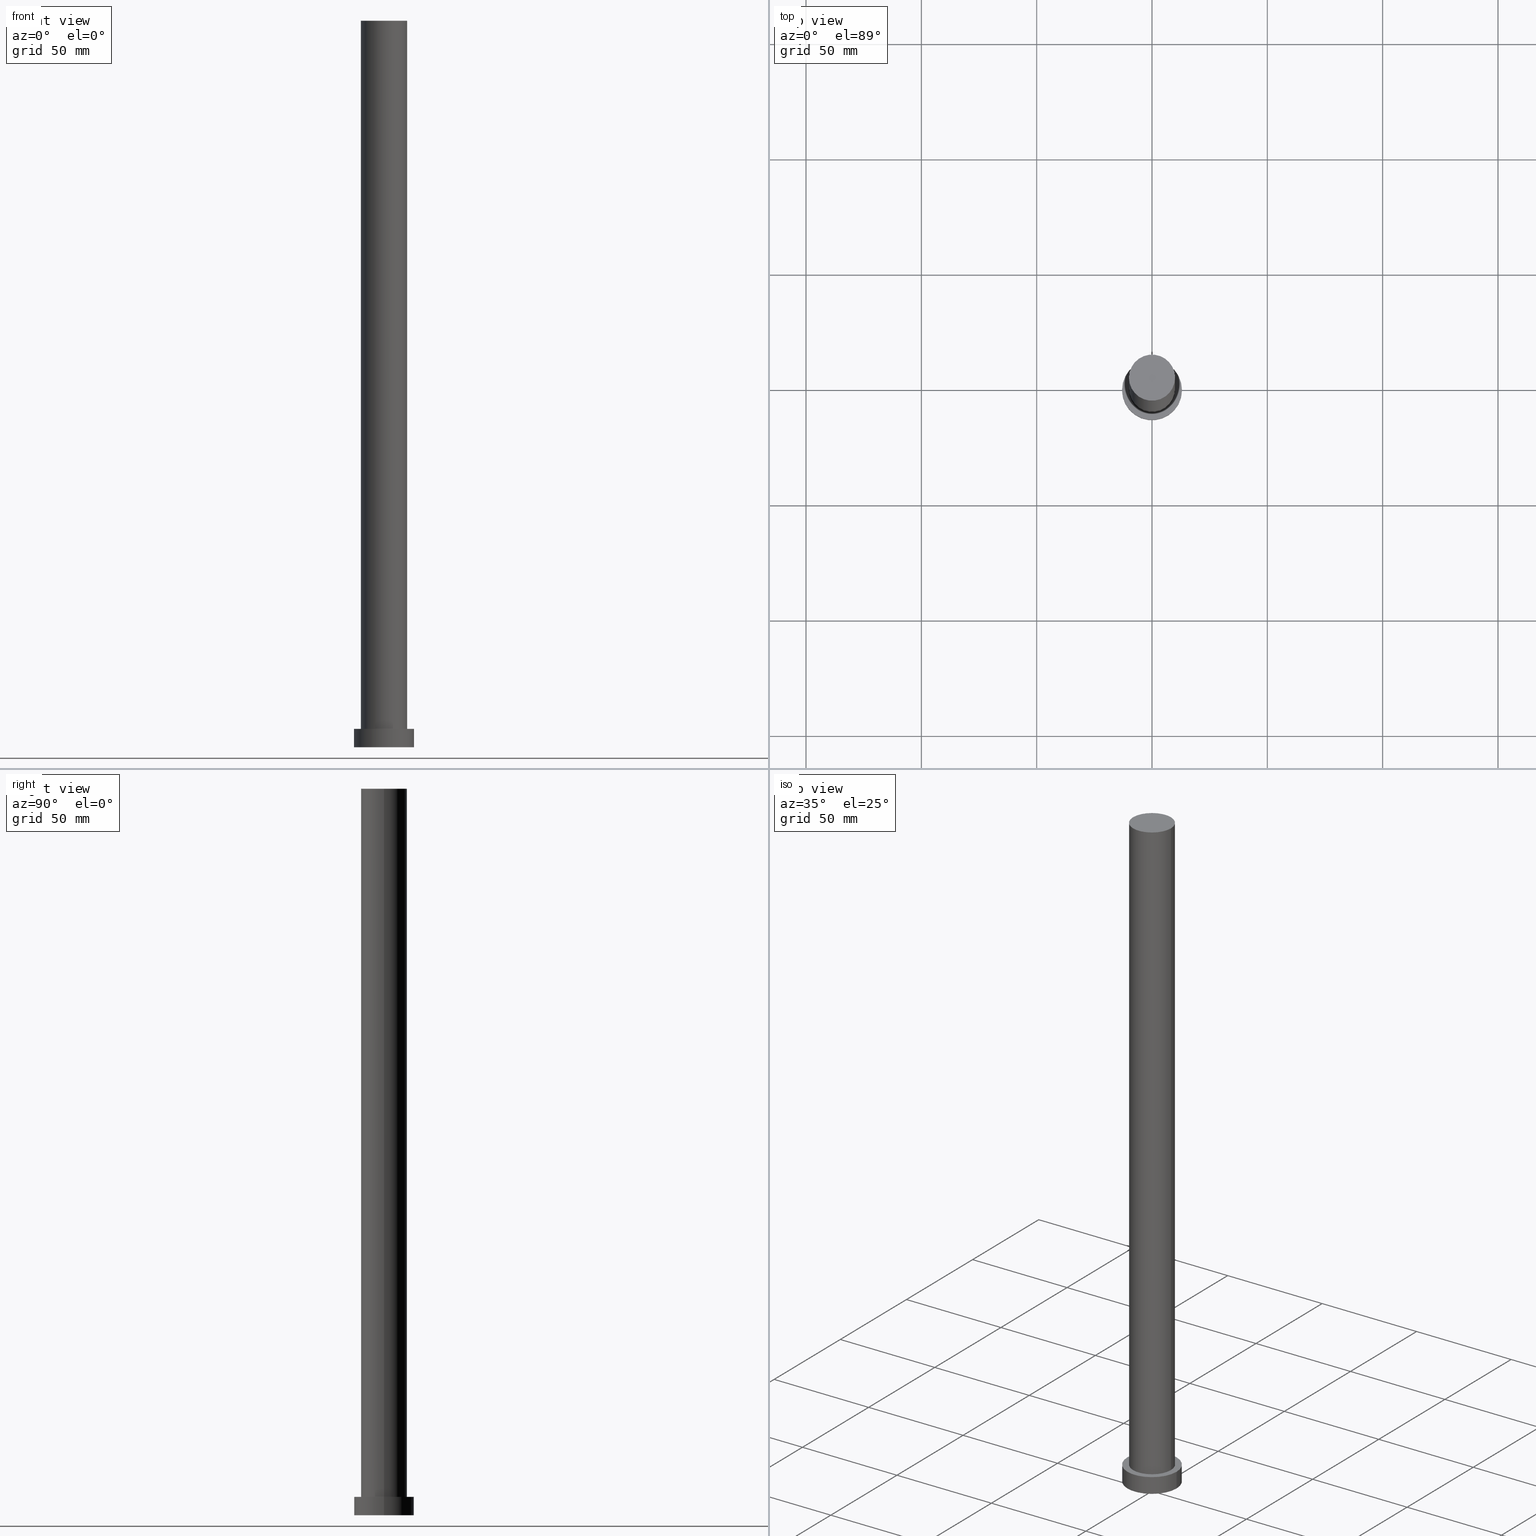
[diagram: canonical four-view strip — front | top / right | iso, engineering-drawing reading convention]
A machine part, canonical four-view strip (front | top / right | iso — engineering-drawing reading convention). The complete STEP part file that produces these views, byte-faithful:
ISO-10303-21;
HEADER;
FILE_DESCRIPTION (( 'STEP AP203' ),
    '1' );
FILE_NAME ('c6f5.STEP',
    '2023-02-13T07:53:54',
    ( '' ),
    ( '' ),
    'SwSTEP 2.0',
    'SolidWorks 2019',
    '' );
FILE_SCHEMA (( 'CONFIG_CONTROL_DESIGN' ));
ENDSEC;

DATA;
#1 = CARTESIAN_POINT ( 'NONE',  ( -10.00000000000000000, 0.000000000000000000, 315.0000000000000000 ) ) ;
#2 = DIRECTION ( 'NONE',  ( -0.000000000000000000, -0.000000000000000000, -1.000000000000000000 ) ) ;
#3 = PRODUCT_DEFINITION ( 'NEZN�M�', '', #159, #122 ) ;
#4 = ORIENTED_EDGE ( 'NONE', *, *, #205, .F. ) ;
#5 = CYLINDRICAL_SURFACE ( 'NONE', #192, 10.00000000000000000 ) ;
#6 = DIRECTION ( 'NONE',  ( 0.000000000000000000, 0.000000000000000000, 1.000000000000000000 ) ) ;
#7 = LOCAL_TIME ( 8, 53, 54.00000000000000000, #135 ) ;
#8 = DIRECTION ( 'NONE',  ( 1.000000000000000000, 0.000000000000000000, 0.000000000000000000 ) ) ;
#9 = DIRECTION ( 'NONE',  ( 1.000000000000000000, 0.000000000000000000, 0.000000000000000000 ) ) ;
#10 = ORIENTED_EDGE ( 'NONE', *, *, #245, .T. ) ;
#11 = CC_DESIGN_DATE_AND_TIME_ASSIGNMENT ( #231, #90, ( #3 ) ) ;
#12 = VERTEX_POINT ( 'NONE', #77 ) ;
#13 = AXIS2_PLACEMENT_3D ( 'NONE', #89, #98, #154 ) ;
#14 = EDGE_LOOP ( 'NONE', ( #149, #117 ) ) ;
#15 = APPROVAL ( #233, 'NEUR�EN�' ) ;
#16 = CARTESIAN_POINT ( 'NONE',  ( 10.00000000000000000, 1.224646799147353256E-15, 8.000000000000000000 ) ) ;
#17 = ORIENTED_EDGE ( 'NONE', *, *, #146, .F. ) ;
#18 = APPROVAL_ROLE ( '' ) ;
#19 = DIRECTION ( 'NONE',  ( -1.000000000000000000, 0.000000000000000000, 0.000000000000000000 ) ) ;
#20 = CARTESIAN_POINT ( 'NONE',  ( 0.000000000000000000, 0.000000000000000000, 8.000000000000000000 ) ) ;
#21 = DIRECTION ( 'NONE',  ( -1.000000000000000000, 0.000000000000000000, 0.000000000000000000 ) ) ;
#22 = FACE_OUTER_BOUND ( 'NONE', #227, .T. ) ;
#23 = APPROVAL_PERSON_ORGANIZATION ( #71, #15, #18 ) ;
#24 = CARTESIAN_POINT ( 'NONE',  ( -13.00000000000000178, 0.000000000000000000, 8.000000000000000000 ) ) ;
#25 = APPROVAL_ROLE ( '' ) ;
#26 =( LENGTH_UNIT ( ) NAMED_UNIT ( * ) SI_UNIT ( .MILLI., .METRE. ) );
#27 = PERSON_AND_ORGANIZATION ( #138, #79 ) ;
#28 = ORIENTED_EDGE ( 'NONE', *, *, #107, .F. ) ;
#29 =( NAMED_UNIT ( * ) SI_UNIT ( $, .STERADIAN. ) SOLID_ANGLE_UNIT ( ) );
#30 = CC_DESIGN_APPROVAL ( #124, ( #159 ) ) ;
#31 = PERSON_AND_ORGANIZATION_ROLE ( 'design_supplier' ) ;
#32 = EDGE_CURVE ( 'NONE', #189, #156, #184, .T. ) ;
#33 = VERTEX_POINT ( 'NONE', #48 ) ;
#34 = CC_DESIGN_PERSON_AND_ORGANIZATION_ASSIGNMENT ( #207, #190, ( #136 ) ) ;
#35 = EDGE_LOOP ( 'NONE', ( #206, #46, #247, #17 ) ) ;
#36 = PLANE ( 'NONE',  #193 ) ;
#37 = DIRECTION ( 'NONE',  ( -0.000000000000000000, -0.000000000000000000, -1.000000000000000000 ) ) ;
#38 = CC_DESIGN_PERSON_AND_ORGANIZATION_ASSIGNMENT ( #108, #248, ( #186 ) ) ;
#39 = CYLINDRICAL_SURFACE ( 'NONE', #166, 10.00000000000000000 ) ;
#40 = CARTESIAN_POINT ( 'NONE',  ( 0.000000000000000000, 0.000000000000000000, 315.0000000000000000 ) ) ;
#41 = DIRECTION ( 'NONE',  ( -0.000000000000000000, -0.000000000000000000, -1.000000000000000000 ) ) ;
#42 = CARTESIAN_POINT ( 'NONE',  ( -10.00000000000000000, 0.000000000000000000, 315.0000000000000000 ) ) ;
#43 = ADVANCED_FACE ( 'NONE', ( #131 ), #202, .T. ) ;
#44 = EDGE_LOOP ( 'NONE', ( #4, #200, #178, #252 ) ) ;
#45 = ADVANCED_FACE ( 'NONE', ( #214 ), #39, .T. ) ;
#46 = ORIENTED_EDGE ( 'NONE', *, *, #205, .T. ) ;
#47 = ORIENTED_EDGE ( 'NONE', *, *, #168, .T. ) ;
#48 = CARTESIAN_POINT ( 'NONE',  ( -13.00000000000000178, 0.000000000000000000, 0.000000000000000000 ) ) ;
#49 = CARTESIAN_POINT ( 'NONE',  ( 0.000000000000000000, 0.000000000000000000, 0.000000000000000000 ) ) ;
#50 = APPROVAL_DATE_TIME ( #203, #172 ) ;
#51 = VECTOR ( 'NONE', #37, 1000.000000000000000 ) ;
#52 = VECTOR ( 'NONE', #2, 1000.000000000000000 ) ;
#53 = APPLICATION_PROTOCOL_DEFINITION ( 'international standard', 'config_control_design', 1994, #67 ) ;
#54 = PRODUCT_DEFINITION_SHAPE ( 'NONE', 'NONE',  #3 ) ;
#55 = SECURITY_CLASSIFICATION_LEVEL ( 'unclassified' ) ;
#56 = CARTESIAN_POINT ( 'NONE',  ( 13.00000000000000178, 1.592040838891559293E-15, 8.000000000000000000 ) ) ;
#57 = CARTESIAN_POINT ( 'NONE',  ( 0.000000000000000000, 0.000000000000000000, 8.000000000000000000 ) ) ;
#58 = DIRECTION ( 'NONE',  ( 1.000000000000000000, 0.000000000000000000, -0.000000000000000000 ) ) ;
#59 = CARTESIAN_POINT ( 'NONE',  ( 0.000000000000000000, 0.000000000000000000, 8.000000000000000000 ) ) ;
#60 = ADVANCED_FACE ( 'NONE', ( #123 ), #5, .T. ) ;
#61 = DIRECTION ( 'NONE',  ( 0.000000000000000000, 0.000000000000000000, 1.000000000000000000 ) ) ;
#62 = EDGE_CURVE ( 'NONE', #216, #241, #208, .T. ) ;
#63 = ORIENTED_EDGE ( 'NONE', *, *, #99, .T. ) ;
#64 = APPLICATION_PROTOCOL_DEFINITION ( 'international standard', 'config_control_design', 1994, #187 ) ;
#65 = FACE_OUTER_BOUND ( 'NONE', #164, .T. ) ;
#66 = CALENDAR_DATE ( 2023, 13, 2 ) ;
#67 = APPLICATION_CONTEXT ( 'configuration controlled 3d designs of mechanical parts and assemblies' ) ;
#68 = CALENDAR_DATE ( 2023, 13, 2 ) ;
#69 = DIRECTION ( 'NONE',  ( 0.000000000000000000, 0.000000000000000000, 1.000000000000000000 ) ) ;
#70 = ORIENTED_EDGE ( 'NONE', *, *, #182, .F. ) ;
#71 = PERSON_AND_ORGANIZATION ( #138, #79 ) ;
#72 = CARTESIAN_POINT ( 'NONE',  ( -13.00000000000000178, 0.000000000000000000, 8.000000000000000000 ) ) ;
#73 = LOCAL_TIME ( 8, 53, 54.00000000000000000, #133 ) ;
#74 = DATE_AND_TIME ( #255, #115 ) ;
#75 = FACE_BOUND ( 'NONE', #97, .T. ) ;
#76 = CARTESIAN_POINT ( 'NONE',  ( -10.00000000000000000, 0.000000000000000000, 8.000000000000000000 ) ) ;
#77 = CARTESIAN_POINT ( 'NONE',  ( 13.00000000000000178, 1.592040838891559293E-15, 0.000000000000000000 ) ) ;
#78 = CARTESIAN_POINT ( 'NONE',  ( 0.000000000000000000, 0.000000000000000000, 315.0000000000000000 ) ) ;
#79 = ORGANIZATION ( 'NEUR�EN�', 'NEUR�EN�', '' ) ;
#80 = APPROVAL_PERSON_ORGANIZATION ( #251, #124, #25 ) ;
#81 = CC_DESIGN_PERSON_AND_ORGANIZATION_ASSIGNMENT ( #157, #31, ( #159 ) ) ;
#82 = DIRECTION ( 'NONE',  ( 1.000000000000000000, 0.000000000000000000, 0.000000000000000000 ) ) ;
#83 = LINE ( 'NONE', #42, #116 ) ;
#84 = SHAPE_DEFINITION_REPRESENTATION ( #54, #148 ) ;
#85 = AXIS2_PLACEMENT_3D ( 'NONE', #59, #125, #19 ) ;
#86 = CARTESIAN_POINT ( 'NONE',  ( 0.000000000000000000, 0.000000000000000000, 0.000000000000000000 ) ) ;
#87 = PRODUCT_RELATED_PRODUCT_CATEGORY ( 'detail', '', ( #186 ) ) ;
#88 = CALENDAR_DATE ( 2023, 13, 2 ) ;
#89 = CARTESIAN_POINT ( 'NONE',  ( 0.000000000000000000, 0.000000000000000000, 8.000000000000000000 ) ) ;
#90 = DATE_TIME_ROLE ( 'creation_date' ) ;
#91 = ADVANCED_FACE ( 'NONE', ( #253 ), #162, .T. ) ;
#92 = PERSON_AND_ORGANIZATION_ROLE ( 'creator' ) ;
#93 = AXIS2_PLACEMENT_3D ( 'NONE', #222, #201, #9 ) ;
#94 = AXIS2_PLACEMENT_3D ( 'NONE', #237, #180, #104 ) ;
#95 = COORDINATED_UNIVERSAL_TIME_OFFSET ( 1, 0, .AHEAD. ) ;
#96 = DIRECTION ( 'NONE',  ( 0.000000000000000000, 0.000000000000000000, 1.000000000000000000 ) ) ;
#97 = EDGE_LOOP ( 'NONE', ( #101, #128 ) ) ;
#98 = DIRECTION ( 'NONE',  ( 0.000000000000000000, 0.000000000000000000, 1.000000000000000000 ) ) ;
#99 = EDGE_CURVE ( 'NONE', #156, #189, #240, .T. ) ;
#100 = DIRECTION ( 'NONE',  ( 1.000000000000000000, 0.000000000000000000, 0.000000000000000000 ) ) ;
#101 = ORIENTED_EDGE ( 'NONE', *, *, #62, .F. ) ;
#102 = DIRECTION ( 'NONE',  ( 0.000000000000000000, 0.000000000000000000, 1.000000000000000000 ) ) ;
#103 = LINE ( 'NONE', #177, #52 ) ;
#104 = DIRECTION ( 'NONE',  ( -1.000000000000000000, 0.000000000000000000, 0.000000000000000000 ) ) ;
#105 = CARTESIAN_POINT ( 'NONE',  ( 0.000000000000000000, 0.000000000000000000, 0.000000000000000000 ) ) ;
#106 = ORIENTED_EDGE ( 'NONE', *, *, #228, .T. ) ;
#107 = EDGE_CURVE ( 'NONE', #229, #33, #195, .T. ) ;
#108 = PERSON_AND_ORGANIZATION ( #138, #79 ) ;
#109 = DIRECTION ( 'NONE',  ( 1.000000000000000000, 0.000000000000000000, 0.000000000000000000 ) ) ;
#110 = AXIS2_PLACEMENT_3D ( 'NONE', #143, #213, #197 ) ;
#111 = CIRCLE ( 'NONE', #139, 13.00000000000000178 ) ;
#112 = PLANE ( 'NONE',  #13 ) ;
#113 = CC_DESIGN_APPROVAL ( #172, ( #3 ) ) ;
#114 = AXIS2_PLACEMENT_3D ( 'NONE', #126, #6, #82 ) ;
#115 = LOCAL_TIME ( 8, 53, 54.00000000000000000, #236 ) ;
#116 = VECTOR ( 'NONE', #242, 1000.000000000000000 ) ;
#117 = ORIENTED_EDGE ( 'NONE', *, *, #245, .F. ) ;
#118 = ORIENTED_EDGE ( 'NONE', *, *, #182, .T. ) ;
#119 = DATE_AND_TIME ( #68, #73 ) ;
#120 = DATE_TIME_ROLE ( 'classification_date' ) ;
#121 = DIRECTION ( 'NONE',  ( 1.000000000000000000, 0.000000000000000000, 0.000000000000000000 ) ) ;
#122 = DESIGN_CONTEXT ( 'detailed design', #187, 'design' ) ;
#123 = FACE_OUTER_BOUND ( 'NONE', #44, .T. ) ;
#124 = APPROVAL ( #218, 'NEUR�EN�' ) ;
#125 = DIRECTION ( 'NONE',  ( -0.000000000000000000, -0.000000000000000000, -1.000000000000000000 ) ) ;
#126 = CARTESIAN_POINT ( 'NONE',  ( 0.000000000000000000, 0.000000000000000000, 315.0000000000000000 ) ) ;
#127 = DIRECTION ( 'NONE',  ( 0.000000000000000000, 0.000000000000000000, 1.000000000000000000 ) ) ;
#128 = ORIENTED_EDGE ( 'NONE', *, *, #183, .F. ) ;
#129 =( GEOMETRIC_REPRESENTATION_CONTEXT ( 3 ) GLOBAL_UNCERTAINTY_ASSIGNED_CONTEXT ( ( #211 ) ) GLOBAL_UNIT_ASSIGNED_CONTEXT ( ( #26, #132, #29 ) ) REPRESENTATION_CONTEXT ( 'NONE', 'WORKASPACE' ) );
#130 = CC_DESIGN_PERSON_AND_ORGANIZATION_ASSIGNMENT ( #230, #92, ( #159 ) ) ;
#131 = FACE_OUTER_BOUND ( 'NONE', #171, .T. ) ;
#132 =( NAMED_UNIT ( * ) PLANE_ANGLE_UNIT ( ) SI_UNIT ( $, .RADIAN. ) );
#133 = COORDINATED_UNIVERSAL_TIME_OFFSET ( 1, 0, .AHEAD. ) ;
#134 = ADVANCED_FACE ( 'NONE', ( #22 ), #165, .T. ) ;
#135 = COORDINATED_UNIVERSAL_TIME_OFFSET ( 1, 0, .AHEAD. ) ;
#136 = SECURITY_CLASSIFICATION ( '', '', #55 ) ;
#137 = APPROVAL_DATE_TIME ( #119, #124 ) ;
#138 = PERSON ( 'NEUR�EN�', 'NEUR�EN�', 'NEUR�EN�', ('NEUR�EN�'), ('NEUR�EN�'), ('NEUR�EN�') ) ;
#139 = AXIS2_PLACEMENT_3D ( 'NONE', #57, #61, #145 ) ;
#140 = EDGE_CURVE ( 'NONE', #33, #12, #246, .T. ) ;
#141 = DIRECTION ( 'NONE',  ( -0.000000000000000000, -0.000000000000000000, -1.000000000000000000 ) ) ;
#142 = CARTESIAN_POINT ( 'NONE',  ( 13.00000000000000178, 1.592040838891559293E-15, 8.000000000000000000 ) ) ;
#143 = CARTESIAN_POINT ( 'NONE',  ( 0.000000000000000000, 0.000000000000000000, 315.0000000000000000 ) ) ;
#144 = DIRECTION ( 'NONE',  ( 0.000000000000000000, 0.000000000000000000, 1.000000000000000000 ) ) ;
#145 = DIRECTION ( 'NONE',  ( 1.000000000000000000, 0.000000000000000000, 0.000000000000000000 ) ) ;
#146 = EDGE_CURVE ( 'NONE', #189, #216, #83, .T. ) ;
#147 = LOCAL_TIME ( 8, 53, 54.00000000000000000, #95 ) ;
#148 = ADVANCED_BREP_SHAPE_REPRESENTATION ( 'c6f5', ( #210, #188 ), #129 ) ;
#149 = ORIENTED_EDGE ( 'NONE', *, *, #140, .F. ) ;
#150 = AXIS2_PLACEMENT_3D ( 'NONE', #78, #127, #121 ) ;
#151 = APPROVAL_ROLE ( '' ) ;
#152 = COORDINATED_UNIVERSAL_TIME_OFFSET ( 1, 0, .AHEAD. ) ;
#153 = ORIENTED_EDGE ( 'NONE', *, *, #228, .F. ) ;
#154 = DIRECTION ( 'NONE',  ( 1.000000000000000000, 0.000000000000000000, -0.000000000000000000 ) ) ;
#155 = PERSON_AND_ORGANIZATION_ROLE ( 'creator' ) ;
#156 = VERTEX_POINT ( 'NONE', #244 ) ;
#157 = PERSON_AND_ORGANIZATION ( #138, #79 ) ;
#158 = CC_DESIGN_DATE_AND_TIME_ASSIGNMENT ( #232, #120, ( #136 ) ) ;
#159 = PRODUCT_DEFINITION_FORMATION_WITH_SPECIFIED_SOURCE ( 'LIBOVOLN�', '', #186, .NOT_KNOWN. ) ;
#160 = DIRECTION ( 'NONE',  ( 0.000000000000000000, 0.000000000000000000, 1.000000000000000000 ) ) ;
#161 = DIRECTION ( 'NONE',  ( 0.000000000000000000, 0.000000000000000000, 1.000000000000000000 ) ) ;
#162 = CYLINDRICAL_SURFACE ( 'NONE', #94, 13.00000000000000178 ) ;
#163 = AXIS2_PLACEMENT_3D ( 'NONE', #220, #144, #215 ) ;
#164 = EDGE_LOOP ( 'NONE', ( #47, #106 ) ) ;
#165 = CYLINDRICAL_SURFACE ( 'NONE', #85, 13.00000000000000178 ) ;
#166 = AXIS2_PLACEMENT_3D ( 'NONE', #175, #194, #21 ) ;
#167 = VECTOR ( 'NONE', #141, 1000.000000000000000 ) ;
#168 = EDGE_CURVE ( 'NONE', #229, #221, #111, .T. ) ;
#169 = CC_DESIGN_APPROVAL ( #15, ( #136 ) ) ;
#170 = PERSON_AND_ORGANIZATION ( #138, #79 ) ;
#171 = EDGE_LOOP ( 'NONE', ( #243, #63 ) ) ;
#172 = APPROVAL ( #185, 'NEUR�EN�' ) ;
#173 = EDGE_LOOP ( 'NONE', ( #153, #118, #10, #28 ) ) ;
#174 = CALENDAR_DATE ( 2023, 13, 2 ) ;
#175 = CARTESIAN_POINT ( 'NONE',  ( 0.000000000000000000, 0.000000000000000000, 315.0000000000000000 ) ) ;
#176 = DIRECTION ( 'NONE',  ( 1.000000000000000000, 0.000000000000000000, 0.000000000000000000 ) ) ;
#177 = CARTESIAN_POINT ( 'NONE',  ( 10.00000000000000000, 1.224646799147353256E-15, 315.0000000000000000 ) ) ;
#178 = ORIENTED_EDGE ( 'NONE', *, *, #146, .T. ) ;
#179 = DIRECTION ( 'NONE',  ( -1.000000000000000000, 0.000000000000000000, 0.000000000000000000 ) ) ;
#180 = DIRECTION ( 'NONE',  ( -0.000000000000000000, -0.000000000000000000, -1.000000000000000000 ) ) ;
#181 = CC_DESIGN_SECURITY_CLASSIFICATION ( #136, ( #159 ) ) ;
#182 = EDGE_CURVE ( 'NONE', #221, #12, #235, .T. ) ;
#183 = EDGE_CURVE ( 'NONE', #241, #216, #226, .T. ) ;
#184 = CIRCLE ( 'NONE', #114, 10.00000000000000000 ) ;
#185 = APPROVAL_STATUS ( 'not_yet_approved' ) ;
#186 = PRODUCT ( 'c6f5', 'c6f5', '', ( #250 ) ) ;
#187 = APPLICATION_CONTEXT ( 'configuration controlled 3d designs of mechanical parts and assemblies' ) ;
#188 = AXIS2_PLACEMENT_3D ( 'NONE', #86, #69, #109 ) ;
#189 = VERTEX_POINT ( 'NONE', #1 ) ;
#190 = PERSON_AND_ORGANIZATION_ROLE ( 'classification_officer' ) ;
#191 = CARTESIAN_POINT ( 'NONE',  ( 0.000000000000000000, 0.000000000000000000, 8.000000000000000000 ) ) ;
#192 = AXIS2_PLACEMENT_3D ( 'NONE', #40, #41, #179 ) ;
#193 = AXIS2_PLACEMENT_3D ( 'NONE', #49, #102, #58 ) ;
#194 = DIRECTION ( 'NONE',  ( -0.000000000000000000, -0.000000000000000000, -1.000000000000000000 ) ) ;
#195 = LINE ( 'NONE', #72, #51 ) ;
#196 = CLOSED_SHELL ( 'NONE', ( #45, #91, #134, #238, #234, #60, #43 ) ) ;
#197 = DIRECTION ( 'NONE',  ( 1.000000000000000000, 0.000000000000000000, -0.000000000000000000 ) ) ;
#198 = CIRCLE ( 'NONE', #93, 13.00000000000000178 ) ;
#199 = AXIS2_PLACEMENT_3D ( 'NONE', #20, #96, #100 ) ;
#200 = ORIENTED_EDGE ( 'NONE', *, *, #32, .F. ) ;
#201 = DIRECTION ( 'NONE',  ( 0.000000000000000000, 0.000000000000000000, 1.000000000000000000 ) ) ;
#202 = PLANE ( 'NONE',  #110 ) ;
#203 = DATE_AND_TIME ( #66, #223 ) ;
#204 = ORIENTED_EDGE ( 'NONE', *, *, #168, .F. ) ;
#205 = EDGE_CURVE ( 'NONE', #156, #241, #103, .T. ) ;
#206 = ORIENTED_EDGE ( 'NONE', *, *, #99, .F. ) ;
#207 = PERSON_AND_ORGANIZATION ( #138, #79 ) ;
#208 = CIRCLE ( 'NONE', #199, 10.00000000000000000 ) ;
#209 = APPROVAL_PERSON_ORGANIZATION ( #170, #172, #151 ) ;
#210 = MANIFOLD_SOLID_BREP ( 'P�idat vysunut�m3', #196 ) ;
#211 = UNCERTAINTY_MEASURE_WITH_UNIT (LENGTH_MEASURE( 1.000000000000000082E-05 ), #26, 'distance_accuracy_value', 'NONE');
#212 = APPROVAL_DATE_TIME ( #74, #15 ) ;
#213 = DIRECTION ( 'NONE',  ( 0.000000000000000000, 0.000000000000000000, 1.000000000000000000 ) ) ;
#214 = FACE_OUTER_BOUND ( 'NONE', #35, .T. ) ;
#215 = DIRECTION ( 'NONE',  ( 1.000000000000000000, 0.000000000000000000, 0.000000000000000000 ) ) ;
#216 = VERTEX_POINT ( 'NONE', #76 ) ;
#217 = FACE_OUTER_BOUND ( 'NONE', #14, .T. ) ;
#218 = APPROVAL_STATUS ( 'not_yet_approved' ) ;
#219 = ORIENTED_EDGE ( 'NONE', *, *, #107, .T. ) ;
#220 = CARTESIAN_POINT ( 'NONE',  ( 0.000000000000000000, 0.000000000000000000, 0.000000000000000000 ) ) ;
#221 = VERTEX_POINT ( 'NONE', #142 ) ;
#222 = CARTESIAN_POINT ( 'NONE',  ( 0.000000000000000000, 0.000000000000000000, 8.000000000000000000 ) ) ;
#223 = LOCAL_TIME ( 8, 53, 54.00000000000000000, #152 ) ;
#224 = CC_DESIGN_PERSON_AND_ORGANIZATION_ASSIGNMENT ( #27, #155, ( #3 ) ) ;
#225 = AXIS2_PLACEMENT_3D ( 'NONE', #105, #160, #8 ) ;
#226 = CIRCLE ( 'NONE', #254, 10.00000000000000000 ) ;
#227 = EDGE_LOOP ( 'NONE', ( #70, #204, #219, #249 ) ) ;
#228 = EDGE_CURVE ( 'NONE', #221, #229, #198, .T. ) ;
#229 = VERTEX_POINT ( 'NONE', #24 ) ;
#230 = PERSON_AND_ORGANIZATION ( #138, #79 ) ;
#231 = DATE_AND_TIME ( #88, #7 ) ;
#232 = DATE_AND_TIME ( #174, #147 ) ;
#233 = APPROVAL_STATUS ( 'not_yet_approved' ) ;
#234 = ADVANCED_FACE ( 'NONE', ( #217 ), #36, .F. ) ;
#235 = LINE ( 'NONE', #56, #167 ) ;
#236 = COORDINATED_UNIVERSAL_TIME_OFFSET ( 1, 0, .AHEAD. ) ;
#237 = CARTESIAN_POINT ( 'NONE',  ( 0.000000000000000000, 0.000000000000000000, 8.000000000000000000 ) ) ;
#238 = ADVANCED_FACE ( 'NONE', ( #75, #65 ), #112, .T. ) ;
#239 = CIRCLE ( 'NONE', #163, 13.00000000000000178 ) ;
#240 = CIRCLE ( 'NONE', #150, 10.00000000000000000 ) ;
#241 = VERTEX_POINT ( 'NONE', #16 ) ;
#242 = DIRECTION ( 'NONE',  ( -0.000000000000000000, -0.000000000000000000, -1.000000000000000000 ) ) ;
#243 = ORIENTED_EDGE ( 'NONE', *, *, #32, .T. ) ;
#244 = CARTESIAN_POINT ( 'NONE',  ( 10.00000000000000000, 1.224646799147353256E-15, 315.0000000000000000 ) ) ;
#245 = EDGE_CURVE ( 'NONE', #12, #33, #239, .T. ) ;
#246 = CIRCLE ( 'NONE', #225, 13.00000000000000178 ) ;
#247 = ORIENTED_EDGE ( 'NONE', *, *, #183, .T. ) ;
#248 = PERSON_AND_ORGANIZATION_ROLE ( 'design_owner' ) ;
#249 = ORIENTED_EDGE ( 'NONE', *, *, #140, .T. ) ;
#250 = MECHANICAL_CONTEXT ( 'NONE', #67, 'mechanical' ) ;
#251 = PERSON_AND_ORGANIZATION ( #138, #79 ) ;
#252 = ORIENTED_EDGE ( 'NONE', *, *, #62, .T. ) ;
#253 = FACE_OUTER_BOUND ( 'NONE', #173, .T. ) ;
#254 = AXIS2_PLACEMENT_3D ( 'NONE', #191, #161, #176 ) ;
#255 = CALENDAR_DATE ( 2023, 13, 2 ) ;
ENDSEC;
END-ISO-10303-21;
